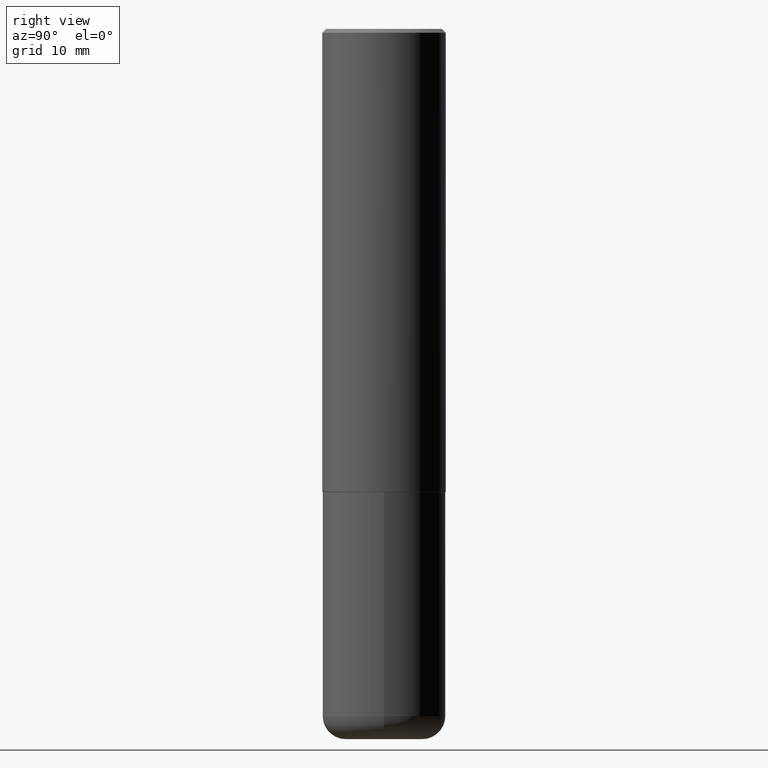
[diagram: clean part render]
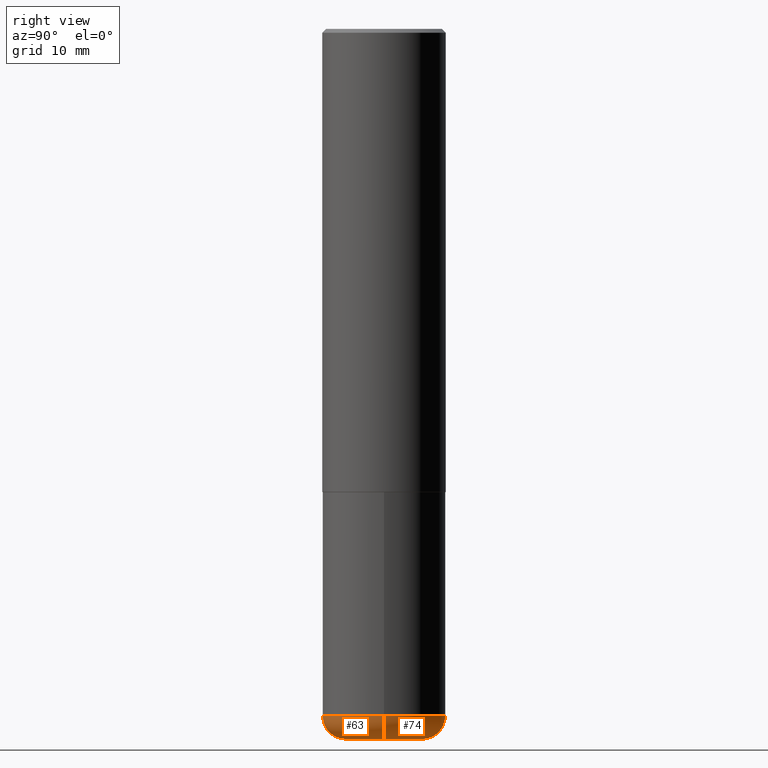
[diagram: same view with one multi-face feature highlighted, each face labeled with its STEP entity id]
A machine part, right view. The highlighted faces form ONE feature: a constant-radius fillet chain: 2 tangent blend faces with common blend radius 2.9997 mm. The faces share edges in the B-rep.
Their STEP definitions:
[1] entity #74 (Torus):
#4 = CIRCLE ( 'NONE', #58, 0.1180999999999999966 ) ;
#20 = EDGE_LOOP ( 'NONE', ( #80, #98, #240, #42 ) ) ;
#30 = AXIS2_PLACEMENT_3D ( 'NONE', #212, #411, #87 ) ;
#42 = ORIENTED_EDGE ( 'NONE', *, *, #263, .F. ) ;
#49 = VERTEX_POINT ( 'NONE', #148 ) ;
#58 = AXIS2_PLACEMENT_3D ( 'NONE', #101, #300, #107 ) ;
#66 = TOROIDAL_SURFACE ( 'NONE', #319, 0.1968500000000000250, 0.1181000000000000105 ) ;
#74 = ADVANCED_FACE ( 'NONE', ( #413 ), #66, .T. ) ;
#80 = ORIENTED_EDGE ( 'NONE', *, *, #124, .T. ) ;
#81 = DIRECTION ( 'NONE',  ( -2.445468806185136597E-29, 3.491481338843145583E-15, 1.000000000000000000 ) ) ;
#82 = VERTEX_POINT ( 'NONE', #153 ) ;
#86 = DIRECTION ( 'NONE',  ( -2.445468806185136597E-29, 3.491481338843145583E-15, 1.000000000000000000 ) ) ;
#87 = DIRECTION ( 'NONE',  ( 1.000000000000000000, -6.982962677686267499E-15, 0.000000000000000000 ) ) ;
#94 = CARTESIAN_POINT ( 'NONE',  ( 0.1968500000000000250, -1.402074161239241360E-14, -3.621999999999999886 ) ) ;
#98 = ORIENTED_EDGE ( 'NONE', *, *, #116, .T. ) ;
#101 = CARTESIAN_POINT ( 'NONE',  ( 0.1968500000000000250, -1.360839766627503947E-14, -3.503899999999999793 ) ) ;
#107 = DIRECTION ( 'NONE',  ( 1.000000000000000000, -6.982962677686273021E-15, 0.000000000000000000 ) ) ;
#116 = EDGE_CURVE ( 'NONE', #415, #82, #132, .T. ) ;
#117 = VERTEX_POINT ( 'NONE', #94 ) ;
#121 = DIRECTION ( 'NONE',  ( 7.105427357601001859E-15, 1.000000000000000000, -3.491481338843145583E-15 ) ) ;
#124 = EDGE_CURVE ( 'NONE', #117, #415, #256, .T. ) ;
#132 = CIRCLE ( 'NONE', #371, 0.1180999999999999966 ) ;
#148 = CARTESIAN_POINT ( 'NONE',  ( 0.3149500000000000077, -1.443308555850978615E-14, -3.503899999999999793 ) ) ;
#153 = CARTESIAN_POINT ( 'NONE',  ( -0.3149500000000000077, -9.995947116896063452E-15, -3.503899999999999793 ) ) ;
#158 = DIRECTION ( 'NONE',  ( 1.000000000000000000, -6.982962677686263555E-15, 4.883557194083111780E-29 ) ) ;
#160 = CARTESIAN_POINT ( 'NONE',  ( 8.568678149992099474E-29, -1.223380146317249786E-14, -3.503899999999999793 ) ) ;
#208 = DIRECTION ( 'NONE',  ( 1.000000000000000000, -6.982962677686263555E-15, 0.000000000000000000 ) ) ;
#212 = CARTESIAN_POINT ( 'NONE',  ( 8.857488016002564476E-29, -1.264614540928987199E-14, -3.621999999999999886 ) ) ;
#240 = ORIENTED_EDGE ( 'NONE', *, *, #380, .F. ) ;
#256 = CIRCLE ( 'NONE', #30, 0.1968500000000000250 ) ;
#263 = EDGE_CURVE ( 'NONE', #117, #49, #4, .T. ) ;
#266 = AXIS2_PLACEMENT_3D ( 'NONE', #375, #81, #208 ) ;
#281 = CARTESIAN_POINT ( 'NONE',  ( -0.1968500000000000250, -1.083509808782873928E-14, -3.503899999999999793 ) ) ;
#282 = CARTESIAN_POINT ( 'NONE',  ( -0.1968500000000000250, -1.062169457542108922E-14, -3.621999999999999886 ) ) ;
#289 = DIRECTION ( 'NONE',  ( -1.000000000000000000, 7.105427357601005014E-15, 0.000000000000000000 ) ) ;
#300 = DIRECTION ( 'NONE',  ( -6.982962677686266711E-15, -1.000000000000000000, 3.491481338843145583E-15 ) ) ;
#319 = AXIS2_PLACEMENT_3D ( 'NONE', #160, #86, #158 ) ;
#354 = CIRCLE ( 'NONE', #266, 0.3149500000000000077 ) ;
#371 = AXIS2_PLACEMENT_3D ( 'NONE', #281, #121, #289 ) ;
#375 = CARTESIAN_POINT ( 'NONE',  ( 8.568678149992099474E-29, -1.223380146317249786E-14, -3.503899999999999793 ) ) ;
#380 = EDGE_CURVE ( 'NONE', #49, #82, #354, .T. ) ;
#411 = DIRECTION ( 'NONE',  ( -2.445468806185136597E-29, 3.491481338843145583E-15, 1.000000000000000000 ) ) ;
#413 = FACE_OUTER_BOUND ( 'NONE', #20, .T. ) ;
#415 = VERTEX_POINT ( 'NONE', #282 ) ;
[2] entity #63 (Torus):
#3 = AXIS2_PLACEMENT_3D ( 'NONE', #224, #129, #417 ) ;
#4 = CIRCLE ( 'NONE', #58, 0.1180999999999999966 ) ;
#23 = DIRECTION ( 'NONE',  ( -2.445468806185136597E-29, 3.491481338843145583E-15, 1.000000000000000000 ) ) ;
#49 = VERTEX_POINT ( 'NONE', #148 ) ;
#57 = CARTESIAN_POINT ( 'NONE',  ( 8.568678149992099474E-29, -1.223380146317249786E-14, -3.503899999999999793 ) ) ;
#58 = AXIS2_PLACEMENT_3D ( 'NONE', #101, #300, #107 ) ;
#63 = ADVANCED_FACE ( 'NONE', ( #253 ), #304, .T. ) ;
#69 = EDGE_CURVE ( 'NONE', #82, #49, #232, .T. ) ;
#82 = VERTEX_POINT ( 'NONE', #153 ) ;
#92 = EDGE_LOOP ( 'NONE', ( #236, #231, #106, #265 ) ) ;
#94 = CARTESIAN_POINT ( 'NONE',  ( 0.1968500000000000250, -1.402074161239241360E-14, -3.621999999999999886 ) ) ;
#101 = CARTESIAN_POINT ( 'NONE',  ( 0.1968500000000000250, -1.360839766627503947E-14, -3.503899999999999793 ) ) ;
#106 = ORIENTED_EDGE ( 'NONE', *, *, #263, .T. ) ;
#107 = DIRECTION ( 'NONE',  ( 1.000000000000000000, -6.982962677686273021E-15, 0.000000000000000000 ) ) ;
#116 = EDGE_CURVE ( 'NONE', #415, #82, #132, .T. ) ;
#117 = VERTEX_POINT ( 'NONE', #94 ) ;
#119 = EDGE_CURVE ( 'NONE', #415, #117, #187, .T. ) ;
#121 = DIRECTION ( 'NONE',  ( 7.105427357601001859E-15, 1.000000000000000000, -3.491481338843145583E-15 ) ) ;
#129 = DIRECTION ( 'NONE',  ( -2.445468806185136597E-29, 3.491481338843145583E-15, 1.000000000000000000 ) ) ;
#132 = CIRCLE ( 'NONE', #371, 0.1180999999999999966 ) ;
#148 = CARTESIAN_POINT ( 'NONE',  ( 0.3149500000000000077, -1.443308555850978615E-14, -3.503899999999999793 ) ) ;
#153 = CARTESIAN_POINT ( 'NONE',  ( -0.3149500000000000077, -9.995947116896063452E-15, -3.503899999999999793 ) ) ;
#162 = CARTESIAN_POINT ( 'NONE',  ( 8.568678149992099474E-29, -1.223380146317249786E-14, -3.503899999999999793 ) ) ;
#185 = DIRECTION ( 'NONE',  ( -2.445468806185136597E-29, 3.491481338843145583E-15, 1.000000000000000000 ) ) ;
#187 = CIRCLE ( 'NONE', #3, 0.1968500000000000250 ) ;
#189 = DIRECTION ( 'NONE',  ( 1.000000000000000000, -6.982962677686263555E-15, 4.883557194083111780E-29 ) ) ;
#202 = AXIS2_PLACEMENT_3D ( 'NONE', #57, #185, #349 ) ;
#210 = AXIS2_PLACEMENT_3D ( 'NONE', #162, #23, #189 ) ;
#224 = CARTESIAN_POINT ( 'NONE',  ( 8.857488016002564476E-29, -1.264614540928987199E-14, -3.621999999999999886 ) ) ;
#231 = ORIENTED_EDGE ( 'NONE', *, *, #119, .T. ) ;
#232 = CIRCLE ( 'NONE', #202, 0.3149500000000000077 ) ;
#236 = ORIENTED_EDGE ( 'NONE', *, *, #116, .F. ) ;
#253 = FACE_OUTER_BOUND ( 'NONE', #92, .T. ) ;
#263 = EDGE_CURVE ( 'NONE', #117, #49, #4, .T. ) ;
#265 = ORIENTED_EDGE ( 'NONE', *, *, #69, .F. ) ;
#281 = CARTESIAN_POINT ( 'NONE',  ( -0.1968500000000000250, -1.083509808782873928E-14, -3.503899999999999793 ) ) ;
#282 = CARTESIAN_POINT ( 'NONE',  ( -0.1968500000000000250, -1.062169457542108922E-14, -3.621999999999999886 ) ) ;
#289 = DIRECTION ( 'NONE',  ( -1.000000000000000000, 7.105427357601005014E-15, 0.000000000000000000 ) ) ;
#300 = DIRECTION ( 'NONE',  ( -6.982962677686266711E-15, -1.000000000000000000, 3.491481338843145583E-15 ) ) ;
#304 = TOROIDAL_SURFACE ( 'NONE', #210, 0.1968500000000000250, 0.1181000000000000105 ) ;
#349 = DIRECTION ( 'NONE',  ( 1.000000000000000000, -6.982962677686263555E-15, 0.000000000000000000 ) ) ;
#371 = AXIS2_PLACEMENT_3D ( 'NONE', #281, #121, #289 ) ;
#415 = VERTEX_POINT ( 'NONE', #282 ) ;
#417 = DIRECTION ( 'NONE',  ( 1.000000000000000000, -6.982962677686267499E-15, 0.000000000000000000 ) ) ;